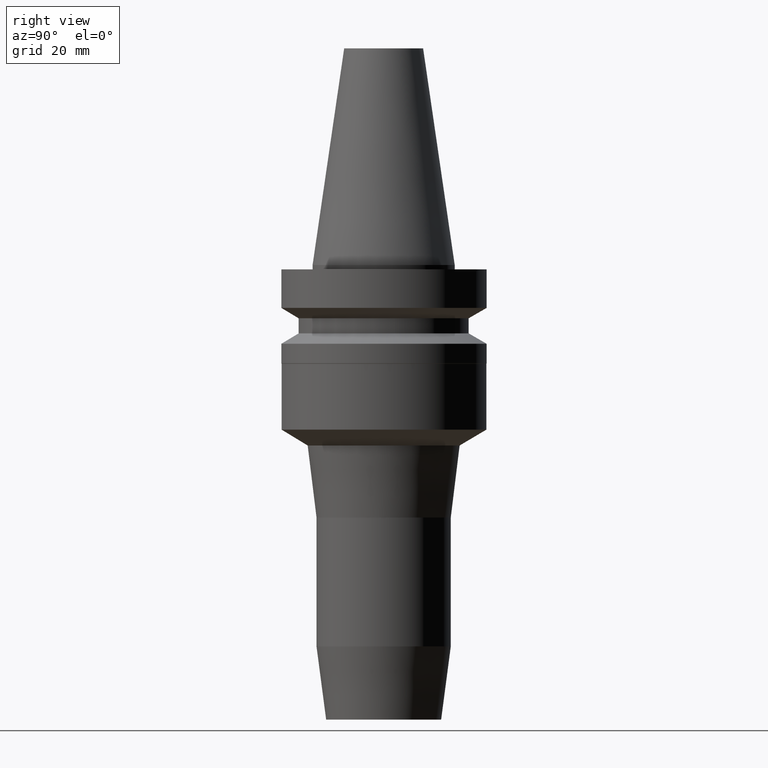
[diagram: clean part render]
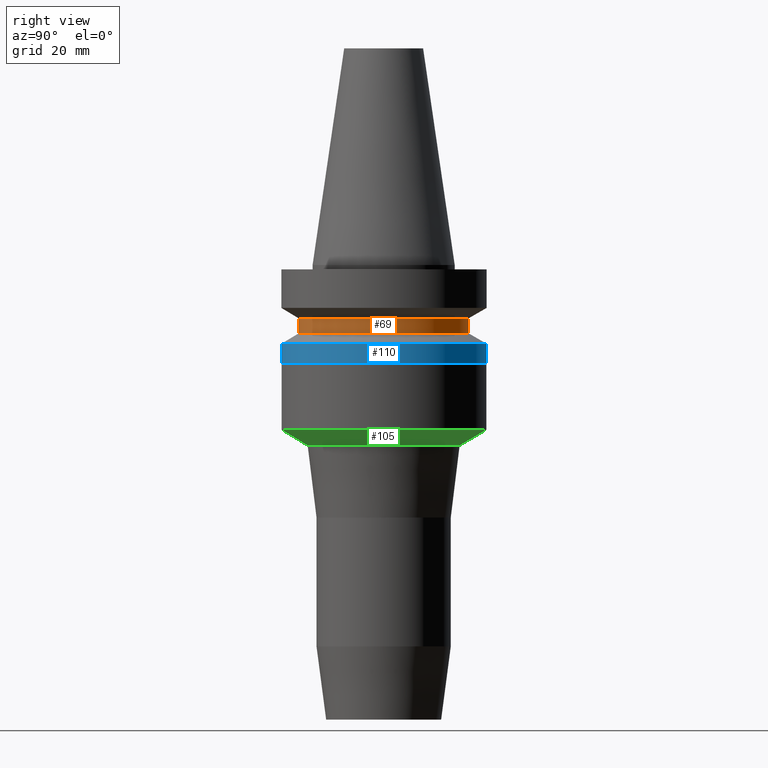
[diagram: same view with three faces highlighted in distinct colors, each labeled with its STEP entity id]
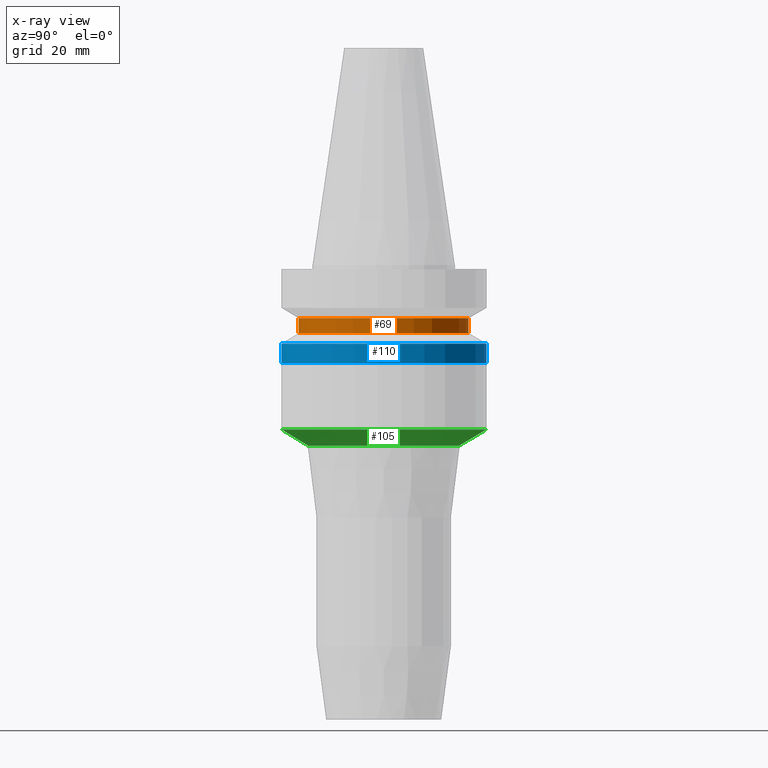
[diagram: x-ray of the same camera — body ghosted, the three highlighted faces saturated]
A machine part, right view with three faces highlighted in distinct colors.
The next image is the same camera in x-ray (body ghosted, the three faces saturated) — at least one of them is partly hidden behind the body in this view.
Their STEP definitions:

[orange] entity #69 — the highlighted cylindrical surface (bore or boss wall) has radius 19 mm, axis along (0, 0, -1).
#69=ADVANCED_FACE('Unnamed[1]',(#173,#174),#175,.T.);
#71=EDGE_CURVE('Unnamed[1]',#177,#177,#178,.T.);
#112=EDGE_CURVE('Unnamed[1]',#242,#242,#243,.T.);
#173=FACE_BOUND('',#310,.T.);
#174=FACE_BOUND('',#311,.T.);
#175=CYLINDRICAL_SURFACE('',#312,19.0);
#177=VERTEX_POINT('',#315);
#178=CIRCLE('',#316,19.0);
#242=VERTEX_POINT('',#397);
#243=CIRCLE('',#398,19.0);
#310=EDGE_LOOP('',(#466));
#311=EDGE_LOOP('',(#467));
#312=AXIS2_PLACEMENT_3D('',#468,#469,#470);
#315=CARTESIAN_POINT('',(9.36279151221199E-016,19.0,-15.29059892));
#316=AXIS2_PLACEMENT_3D('',#471,#472,#473);
#397=CARTESIAN_POINT('',(7.29240495619202E-016,19.0,-11.90940108));
#398=AXIS2_PLACEMENT_3D('',#543,#544,#545);
#466=ORIENTED_EDGE('',*,*,#71,.F.);
#467=ORIENTED_EDGE('',*,*,#112,.T.);
#468=CARTESIAN_POINT('',(8.32759823420201E-016,1.6655196468404E-015,-13.6));
#469=DIRECTION('',(6.12323399573677E-017,1.22464679914735E-016,-1.0));
#470=DIRECTION('',(-1.23259516440783E-032,1.0,1.22464679914735E-016));
#471=CARTESIAN_POINT('',(9.36279151221199E-016,1.8725583024424E-015,-15.29059892));
#472=DIRECTION('',(6.12323399573677E-017,1.22464679914735E-016,-1.0));
#473=DIRECTION('',(-1.23259516440783E-032,1.0,1.22464679914735E-016));
#543=CARTESIAN_POINT('',(7.29240495619202E-016,1.4584809912384E-015,-11.90940108));
#544=DIRECTION('',(6.12323399573677E-017,1.22464679914735E-016,-1.0));
#545=DIRECTION('',(-1.23259516440783E-032,1.0,1.22464679914735E-016));

[blue] entity #110 — the highlighted cylindrical surface (bore or boss wall) has radius 23 mm, axis along (0, 0, -1).
#80=EDGE_CURVE('Unnamed[1]',#191,#191,#192,.T.);
#93=EDGE_CURVE('Unnamed[1]',#212,#212,#213,.T.);
#110=ADVANCED_FACE('Unnamed[1]',(#238,#239),#240,.T.);
#191=VERTEX_POINT('',#333);
#192=CIRCLE('',#334,23.0);
#212=VERTEX_POINT('',#359);
#213=CIRCLE('',#360,23.0);
#238=FACE_BOUND('',#392,.T.);
#239=FACE_BOUND('',#393,.T.);
#240=CYLINDRICAL_SURFACE('',#394,23.0);
#333=CARTESIAN_POINT('',(1.07768918324967E-015,23.0,-17.6));
#334=AXIS2_PLACEMENT_3D('',#486,#487,#488);
#359=CARTESIAN_POINT('',(1.34711147906232E-015,23.0,-22.0000000000037));
#360=AXIS2_PLACEMENT_3D('',#510,#511,#512);
#392=EDGE_LOOP('',(#538));
#393=EDGE_LOOP('',(#539));
#394=AXIS2_PLACEMENT_3D('',#540,#541,#542);
#486=CARTESIAN_POINT('',(1.07768918324967E-015,2.15537836649934E-015,-17.6));
#487=DIRECTION('',(6.12323399573677E-017,1.22464679914735E-016,-1.0));
#488=DIRECTION('',(-1.23259516440783E-032,1.0,1.22464679914735E-016));
#510=CARTESIAN_POINT('',(1.34711147906232E-015,2.69422295812463E-015,-22.0000000000037));
#511=DIRECTION('',(6.12323399573677E-017,1.22464679914735E-016,-1.0));
#512=DIRECTION('',(-1.23259516440783E-032,1.0,1.22464679914735E-016));
#538=ORIENTED_EDGE('',*,*,#93,.F.);
#539=ORIENTED_EDGE('',*,*,#80,.T.);
#540=CARTESIAN_POINT('',(1.21240033115599E-015,2.42480066231199E-015,-19.8000000000019));
#541=DIRECTION('',(6.12323399573677E-017,1.22464679914735E-016,-1.0));
#542=DIRECTION('',(-1.23259516440783E-032,1.0,1.22464679914735E-016));

[green] entity #105 — the highlighted conical surface has half-angle 59.333 deg.
#102=EDGE_CURVE('Unnamed[1]',#226,#226,#227,.T.);
#105=ADVANCED_FACE('Unnamed[1]',(#230,#231),#232,.T.);
#132=EDGE_CURVE('Unnamed[1]',#272,#272,#273,.T.);
#226=VERTEX_POINT('',#377);
#227=CIRCLE('',#378,22.95);
#230=FACE_BOUND('',#382,.T.);
#231=FACE_BOUND('',#383,.T.);
#232=CONICAL_SURFACE('',#384,19.962027365656,1.03555478209556);
#272=VERTEX_POINT('',#434);
#273=CIRCLE('',#435,16.9740547313119);
#377=CARTESIAN_POINT('',(2.25335011043113E-015,22.95,-36.8));
#378=AXIS2_PLACEMENT_3D('',#525,#526,#527);
#382=EDGE_LOOP('',(#529));
#383=EDGE_LOOP('',(#530));
#384=AXIS2_PLACEMENT_3D('',#531,#532,#533);
#434=CARTESIAN_POINT('',(2.47033391207569E-015,16.9740547313119,-40.3436144004236));
#435=AXIS2_PLACEMENT_3D('',#574,#575,#576);
#525=CARTESIAN_POINT('',(2.25335011043113E-015,4.50670022086226E-015,-36.8));
#526=DIRECTION('',(6.12323399573677E-017,1.22464679914735E-016,-1.0));
#527=DIRECTION('',(-1.23259516440783E-032,1.0,1.22464679914735E-016));
#529=ORIENTED_EDGE('',*,*,#132,.F.);
#530=ORIENTED_EDGE('',*,*,#102,.T.);
#531=CARTESIAN_POINT('',(2.36184201125341E-015,4.72368402250682E-015,-38.5718072002118));
#532=DIRECTION('',(-6.12323399573677E-017,-1.22464679914735E-016,1.0));
#533=DIRECTION('',(-1.23259516440783E-032,1.0,1.22464679914735E-016));
#574=CARTESIAN_POINT('',(2.47033391207569E-015,4.94066782415138E-015,-40.3436144004236));
#575=DIRECTION('',(6.12323399573677E-017,1.22464679914735E-016,-1.0));
#576=DIRECTION('',(-1.23259516440783E-032,1.0,1.22464679914735E-016));